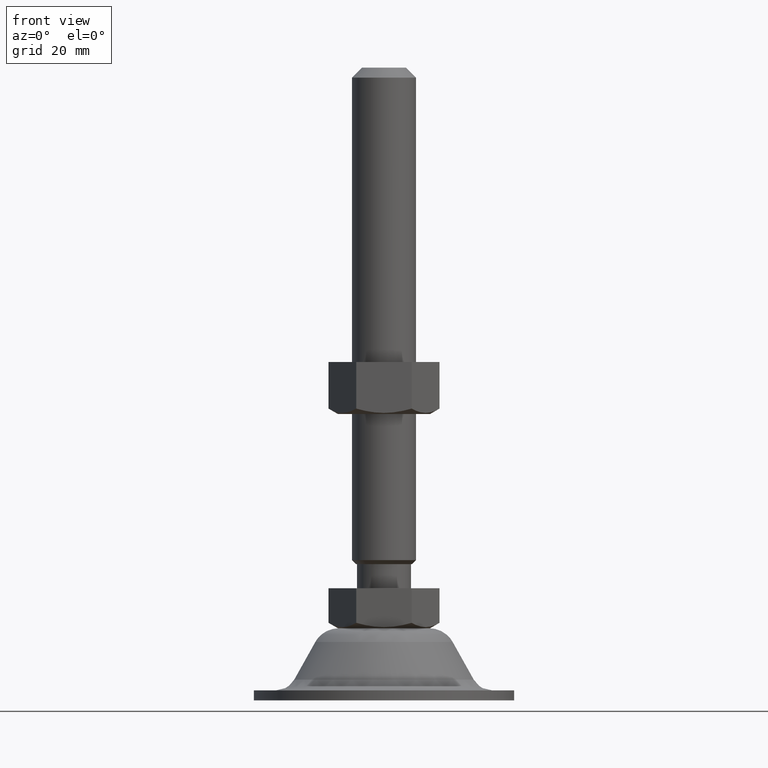
[diagram: clean part render]
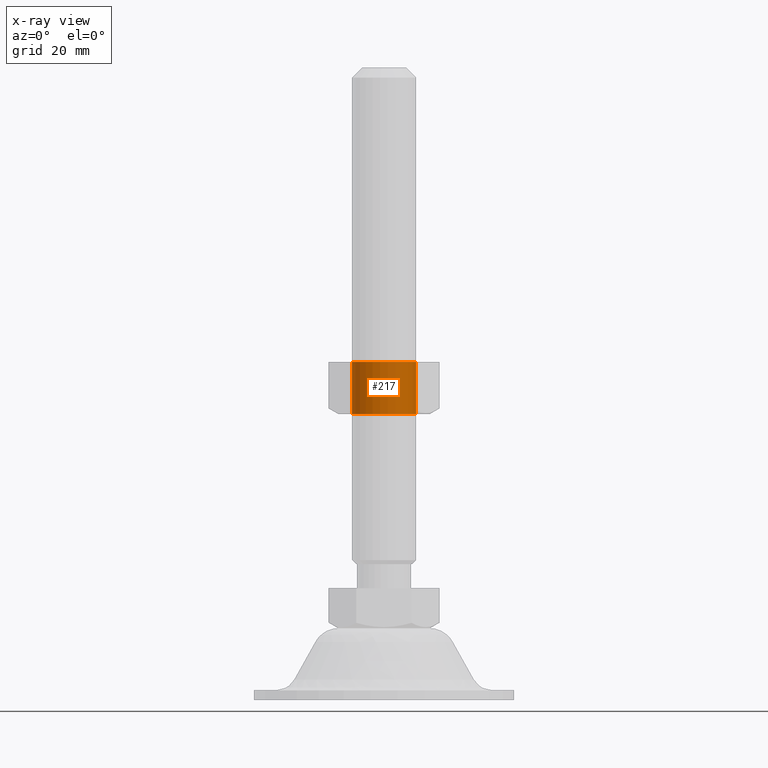
[diagram: x-ray — body ghosted, one internal face saturated and labeled with its STEP entity id]
A machine part, front view, then the same camera in x-ray: the body is ghosted and one INTERNAL B-rep face — a face not visible from any outside direction — is saturated and labeled: STEP entity #217.
In plain terms, the highlighted cylindrical surface (edge-blend (fillet) strip) has radius 8 mm, axis along (0, 0, -1).
Its self-contained STEP definition (entity closure, byte-faithful):
#217=ADVANCED_FACE('',(#928),#927,.F.);
#927=CYLINDRICAL_SURFACE('',#1574,8.00000000000E+00);
#928=FACE_OUTER_BOUND('',#1575,.T.);
#1571=CARTESIAN_POINT('',(0.00000000000E+00,0.00000000000E+00,-9.43500000000E+02));
#1572=DIRECTION('',(-0.00000000000E+00,0.00000000000E+00,-1.00000000000E+00));
#1573=DIRECTION('',(1.00000000000E+00,1.22464679915E-16,0.00000000000E+00));
#1574=AXIS2_PLACEMENT_3D('',#1571,#1572,#1573);
#1575=EDGE_LOOP('',(#2205,#2206,#2207,#2208));
#2205=ORIENTED_EDGE('',*,*,#2456,.T.);
#2206=ORIENTED_EDGE('',*,*,#2459,.T.);
#2207=ORIENTED_EDGE('',*,*,#2453,.F.);
#2208=ORIENTED_EDGE('',*,*,#2460,.F.);
#2453=EDGE_CURVE('',#3565,#3566,#3567,.T.);
#2456=EDGE_CURVE('',#3580,#3579,#3587,.T.);
#2459=EDGE_CURVE('',#3579,#3566,#3605,.T.);
#2460=EDGE_CURVE('',#3580,#3565,#3611,.T.);
#3565=VERTEX_POINT('',#4649);
#3566=VERTEX_POINT('',#4650);
#3567=CIRCLE('',#4654,8.00000000000E+00);
#3579=VERTEX_POINT('',#4659);
#3580=VERTEX_POINT('',#4660);
#3587=CIRCLE('',#4668,8.00000000000E+00);
#3605=(BOUNDED_CURVE() B_SPLINE_CURVE(1,(#4673,#4674),.UNSPECIFIED.,.F.,.F.) B_SPLINE_CURVE_WITH_KNOTS((2,2),(8.33333343261E-02,9.16666667006E-01),.UNSPECIFIED.) CURVE() GEOMETRIC_REPRESENTATION_ITEM() RATIONAL_B_SPLINE_CURVE((1.00000000000E+00,1.00000000000E+00)) REPRESENTATION_ITEM('') );
#3611=(BOUNDED_CURVE() B_SPLINE_CURVE(1,(#4675,#4676),.UNSPECIFIED.,.F.,.F.) B_SPLINE_CURVE_WITH_KNOTS((2,2),(8.33333333333E-02,9.16666666667E-01),.UNSPECIFIED.) CURVE() GEOMETRIC_REPRESENTATION_ITEM() RATIONAL_B_SPLINE_CURVE((7.50000000000E-01,7.50000000000E-01)) REPRESENTATION_ITEM('') );
#4649=CARTESIAN_POINT('',(-8.00000000000E+00,0.00000000000E+00,4.35000000000E+01));
#4650=CARTESIAN_POINT('',(8.00000000000E+00,1.48029736617E-15,4.35000000000E+01));
#4651=CARTESIAN_POINT('',(0.00000000000E+00,0.00000000000E+00,4.35000000000E+01));
#4652=DIRECTION('',(0.00000000000E+00,0.00000000000E+00,1.00000000000E+00));
#4653=DIRECTION('',(-1.00000000000E+00,-1.22460635382E-16,0.00000000000E+00));
#4654=AXIS2_PLACEMENT_3D('',#4651,#4652,#4653);
#4659=CARTESIAN_POINT('',(8.00000000000E+00,1.48029736617E-15,5.65000000000E+01));
#4660=CARTESIAN_POINT('',(-8.00000000000E+00,0.00000000000E+00,5.65000000000E+01));
#4665=CARTESIAN_POINT('',(0.00000000000E+00,0.00000000000E+00,5.65000000000E+01));
#4666=DIRECTION('',(0.00000000000E+00,0.00000000000E+00,1.00000000000E+00));
#4667=DIRECTION('',(-1.00000000000E+00,-1.22460635382E-16,0.00000000000E+00));
#4668=AXIS2_PLACEMENT_3D('',#4665,#4666,#4667);
#4673=CARTESIAN_POINT('',(8.00000000000E+00,9.79717439318E-16,5.64999999845E+01));
#4674=CARTESIAN_POINT('',(8.00000000000E+00,9.79717439318E-16,4.34999999947E+01));
#4675=CARTESIAN_POINT('',(-8.00000000000E+00,-8.88178419700E-16,5.65000000000E+01));
#4676=CARTESIAN_POINT('',(-8.00000000000E+00,-8.88178419700E-16,4.35000000000E+01));